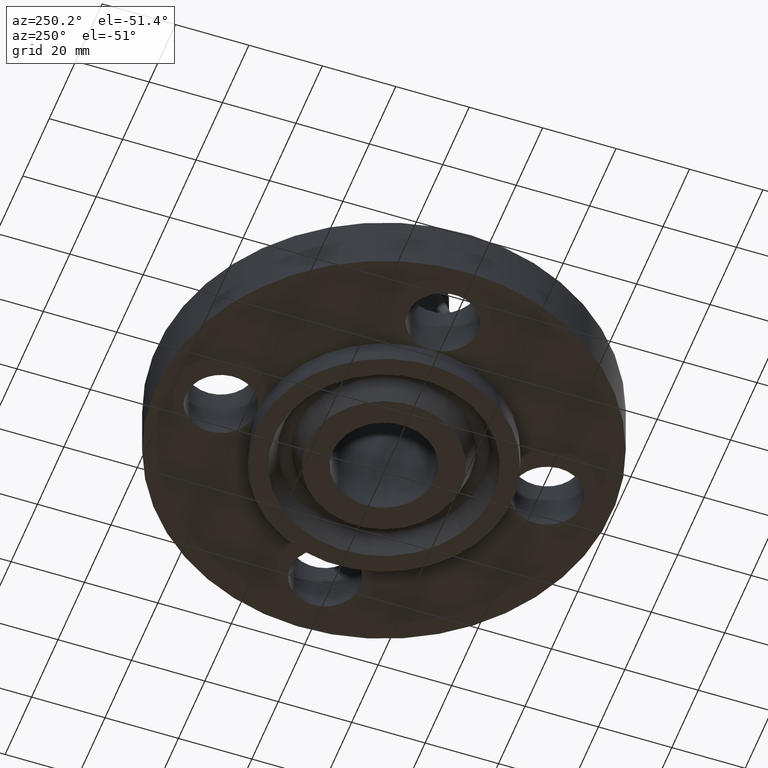
[diagram: clean part render]
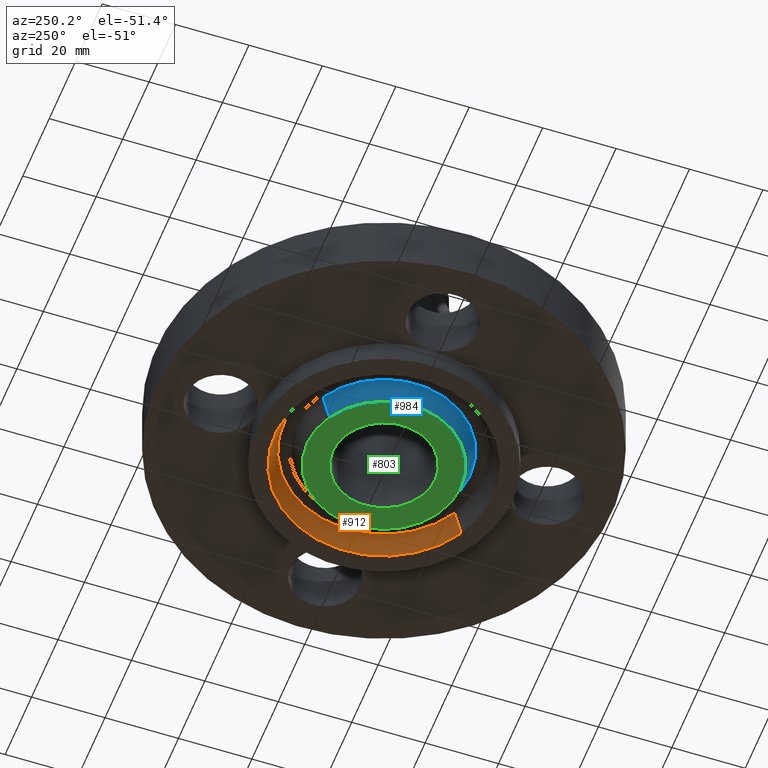
[diagram: same view with three faces highlighted in distinct colors, each labeled with its STEP entity id]
A machine part, auxiliary view with three faces highlighted in distinct colors.
Their STEP definitions:

[orange] entity #912 — the highlighted conical surface has half-angle 23 deg.
#773=AXIS2_PLACEMENT_3D('Circle Axis2P3D',#771,#772,$) ;
#847=AXIS2_PLACEMENT_3D('Cone Axis2P3D',#844,#845,#846) ;
#868=AXIS2_PLACEMENT_3D('Circle Axis2P3D',#866,#867,$) ;
#766=CARTESIAN_POINT('Vertex',(0.561886731246,-1.02852676254,-0.250000000001)) ;
#768=CARTESIAN_POINT('Vertex',(-0.561886731246,1.02852676254,-0.250000000001)) ;
#771=CARTESIAN_POINT('Axis2P3D Location',(-1.04902962957E-016,-2.09805925913E-016,-0.250000000001)) ;
#813=CARTESIAN_POINT('Vertex',(-0.514854363898,0.942434591585,-0.0188873350169)) ;
#815=CARTESIAN_POINT('Vertex',(0.514854363898,-0.942434591585,-0.0188873350169)) ;
#844=CARTESIAN_POINT('Axis2P3D Location',(0.,0.,-0.0188873350169)) ;
#849=CARTESIAN_POINT('Line Origine',(-0.538370547572,0.985480677062,-0.134443667509)) ;
#854=CARTESIAN_POINT('Line Origine',(0.538370547572,-0.985480677062,-0.134443667509)) ;
#866=CARTESIAN_POINT('Axis2P3D Location',(0.,0.,-0.0188873350169)) ;
#772=DIRECTION('Axis2P3D Direction',(0.,0.,-0.0393700787402)) ;
#845=DIRECTION('Axis2P3D Direction',(-0.,-0.,-0.0393700787402)) ;
#846=DIRECTION('Axis2P3D XDirection',(-0.0188750212049,0.0345504945626,0.)) ;
#850=DIRECTION('Vector Direction',(-0.00737505833565,0.0134999537303,-0.0362403485611)) ;
#855=DIRECTION('Vector Direction',(0.00737505833565,-0.0134999537303,-0.0362403485611)) ;
#867=DIRECTION('Axis2P3D Direction',(0.,0.,0.0393700787402)) ;
#851=VECTOR('Line Direction',#850,0.0393700787402) ;
#856=VECTOR('Line Direction',#855,0.0393700787402) ;
#907=ORIENTED_EDGE('',*,*,#775,.T.) ;
#908=ORIENTED_EDGE('',*,*,#858,.T.) ;
#909=ORIENTED_EDGE('',*,*,#870,.T.) ;
#910=ORIENTED_EDGE('',*,*,#853,.F.) ;
#912=ADVANCED_FACE('PartBody',(#911),#848,.F.) ;
#774=CIRCLE('generated circle',#773,1.172) ;
#869=CIRCLE('generated circle',#868,1.07389849401) ;
#848=CONICAL_SURFACE('Cone',#847,1.07389849401,0.401425727959) ;
#775=EDGE_CURVE('',#769,#767,#774,.T.) ;
#853=EDGE_CURVE('',#769,#814,#852,.F.) ;
#858=EDGE_CURVE('',#767,#816,#857,.F.) ;
#870=EDGE_CURVE('',#816,#814,#869,.T.) ;
#906=EDGE_LOOP('',(#907,#908,#909,#910)) ;
#911=FACE_OUTER_BOUND('',#906,.T.) ;
#852=LINE('Line',#849,#851) ;
#857=LINE('Line',#854,#856) ;
#767=VERTEX_POINT('',#766) ;
#769=VERTEX_POINT('',#768) ;
#814=VERTEX_POINT('',#813) ;
#816=VERTEX_POINT('',#815) ;

[blue] entity #984 — the highlighted conical surface has half-angle 23 deg.
#792=AXIS2_PLACEMENT_3D('Circle Axis2P3D',#790,#791,$) ;
#946=AXIS2_PLACEMENT_3D('Circle Axis2P3D',#944,#945,$) ;
#959=AXIS2_PLACEMENT_3D('Cone Axis2P3D',#956,#957,#958) ;
#785=CARTESIAN_POINT('Vertex',(-0.396964345966,0.726638361248,-0.250000000001)) ;
#787=CARTESIAN_POINT('Vertex',(0.396964345966,-0.726638361248,-0.250000000001)) ;
#790=CARTESIAN_POINT('Axis2P3D Location',(2.09805925913E-016,-6.99353086378E-017,-0.250000000001)) ;
#922=CARTESIAN_POINT('Vertex',(0.443996713314,-0.812730532203,-0.0188873350169)) ;
#929=CARTESIAN_POINT('Vertex',(-0.443996713314,0.812730532203,-0.0188873350169)) ;
#944=CARTESIAN_POINT('Axis2P3D Location',(0.,0.,-0.0188873350169)) ;
#956=CARTESIAN_POINT('Axis2P3D Location',(0.,0.,-0.310000000001)) ;
#961=CARTESIAN_POINT('Line Origine',(-0.42048052964,0.769684446725,-0.134443667509)) ;
#966=CARTESIAN_POINT('Line Origine',(0.42048052964,-0.769684446725,-0.134443667509)) ;
#791=DIRECTION('Axis2P3D Direction',(0.,0.,-0.0393700787402)) ;
#945=DIRECTION('Axis2P3D Direction',(0.,0.,0.0393700787402)) ;
#957=DIRECTION('Axis2P3D Direction',(0.,0.,0.0393700787402)) ;
#958=DIRECTION('Axis2P3D XDirection',(-0.0188750212049,0.0345504945626,0.)) ;
#962=DIRECTION('Vector Direction',(-0.00737505833565,0.0134999537303,0.0362403485611)) ;
#967=DIRECTION('Vector Direction',(0.00737505833565,-0.0134999537303,0.0362403485611)) ;
#963=VECTOR('Line Direction',#962,0.0393700787402) ;
#968=VECTOR('Line Direction',#967,0.0393700787402) ;
#979=ORIENTED_EDGE('',*,*,#970,.F.) ;
#980=ORIENTED_EDGE('',*,*,#948,.F.) ;
#981=ORIENTED_EDGE('',*,*,#965,.T.) ;
#982=ORIENTED_EDGE('',*,*,#794,.F.) ;
#984=ADVANCED_FACE('PartBody',(#983),#960,.T.) ;
#793=CIRCLE('generated circle',#792,0.828000000003) ;
#947=CIRCLE('generated circle',#946,0.926101505996) ;
#960=CONICAL_SURFACE('Cone',#959,0.802531511031,0.401425727959) ;
#794=EDGE_CURVE('',#788,#786,#793,.T.) ;
#948=EDGE_CURVE('',#930,#923,#947,.T.) ;
#965=EDGE_CURVE('',#930,#786,#964,.F.) ;
#970=EDGE_CURVE('',#923,#788,#969,.F.) ;
#978=EDGE_LOOP('',(#979,#980,#981,#982)) ;
#983=FACE_OUTER_BOUND('',#978,.T.) ;
#964=LINE('Line',#961,#963) ;
#969=LINE('Line',#966,#968) ;
#786=VERTEX_POINT('',#785) ;
#788=VERTEX_POINT('',#787) ;
#923=VERTEX_POINT('',#922) ;
#930=VERTEX_POINT('',#929) ;

[green] entity #803 — the highlighted planar face has unit normal (0, 0, -1).
#386=AXIS2_PLACEMENT_3D('Circle Axis2P3D',#384,#385,$) ;
#410=AXIS2_PLACEMENT_3D('Circle Axis2P3D',#408,#409,$) ;
#756=AXIS2_PLACEMENT_3D('Plane Axis2P3D',#753,#754,#755) ;
#783=AXIS2_PLACEMENT_3D('Circle Axis2P3D',#781,#782,$) ;
#792=AXIS2_PLACEMENT_3D('Circle Axis2P3D',#790,#791,$) ;
#381=CARTESIAN_POINT('Vertex',(0.262964907925,0.481354035199,-0.250000000001)) ;
#384=CARTESIAN_POINT('Axis2P3D Location',(0.,0.,-0.250000000001)) ;
#388=CARTESIAN_POINT('Vertex',(-0.262964907925,-0.481354035199,-0.250000000001)) ;
#408=CARTESIAN_POINT('Axis2P3D Location',(0.,0.,-0.250000000001)) ;
#753=CARTESIAN_POINT('Axis2P3D Location',(0.,0.548500000002,-0.250000000001)) ;
#781=CARTESIAN_POINT('Axis2P3D Location',(0.,6.99353086378E-017,-0.250000000001)) ;
#785=CARTESIAN_POINT('Vertex',(-0.396964345966,0.726638361248,-0.250000000001)) ;
#787=CARTESIAN_POINT('Vertex',(0.396964345966,-0.726638361248,-0.250000000001)) ;
#790=CARTESIAN_POINT('Axis2P3D Location',(2.09805925913E-016,-6.99353086378E-017,-0.250000000001)) ;
#385=DIRECTION('Axis2P3D Direction',(0.,0.,-0.0393700787402)) ;
#409=DIRECTION('Axis2P3D Direction',(0.,0.,-0.0393700787402)) ;
#754=DIRECTION('Axis2P3D Direction',(0.,0.,-0.0393700787402)) ;
#755=DIRECTION('Axis2P3D XDirection',(0.0393700787402,0.,0.)) ;
#782=DIRECTION('Axis2P3D Direction',(0.,0.,-0.0393700787402)) ;
#791=DIRECTION('Axis2P3D Direction',(0.,0.,-0.0393700787402)) ;
#796=ORIENTED_EDGE('',*,*,#789,.T.) ;
#797=ORIENTED_EDGE('',*,*,#794,.T.) ;
#800=ORIENTED_EDGE('',*,*,#390,.F.) ;
#801=ORIENTED_EDGE('',*,*,#412,.F.) ;
#802=FACE_BOUND('',#799,.T.) ;
#803=ADVANCED_FACE('PartBody',(#798,#802),#757,.T.) ;
#387=CIRCLE('generated circle',#386,0.548500000002) ;
#411=CIRCLE('generated circle',#410,0.548500000002) ;
#784=CIRCLE('generated circle',#783,0.828000000003) ;
#793=CIRCLE('generated circle',#792,0.828000000003) ;
#390=EDGE_CURVE('',#382,#389,#387,.T.) ;
#412=EDGE_CURVE('',#389,#382,#411,.T.) ;
#789=EDGE_CURVE('',#786,#788,#784,.T.) ;
#794=EDGE_CURVE('',#788,#786,#793,.T.) ;
#795=EDGE_LOOP('',(#796,#797)) ;
#799=EDGE_LOOP('',(#800,#801)) ;
#798=FACE_OUTER_BOUND('',#795,.T.) ;
#757=PLANE('',#756) ;
#382=VERTEX_POINT('',#381) ;
#389=VERTEX_POINT('',#388) ;
#786=VERTEX_POINT('',#785) ;
#788=VERTEX_POINT('',#787) ;